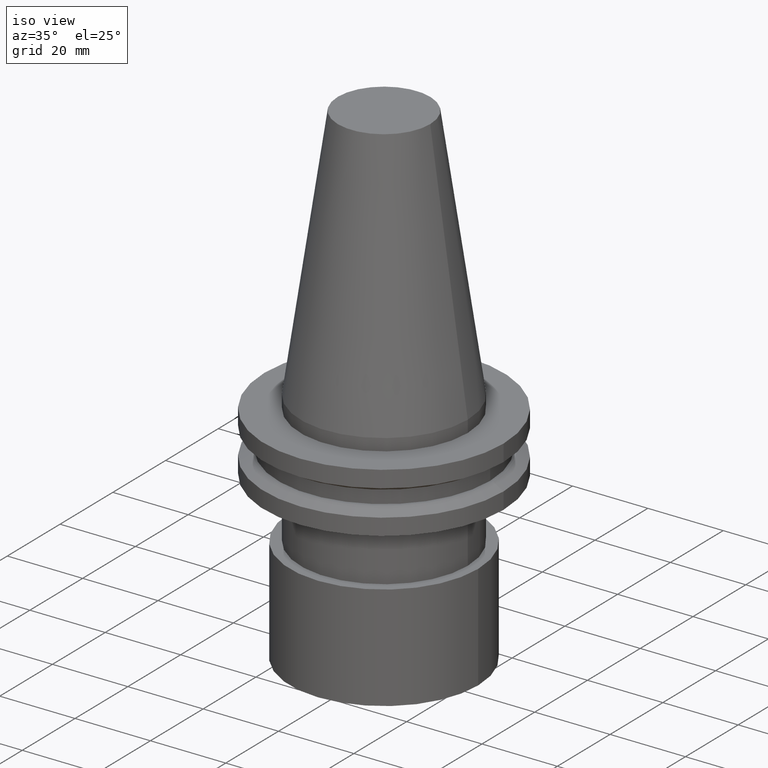
[diagram: clean part render]
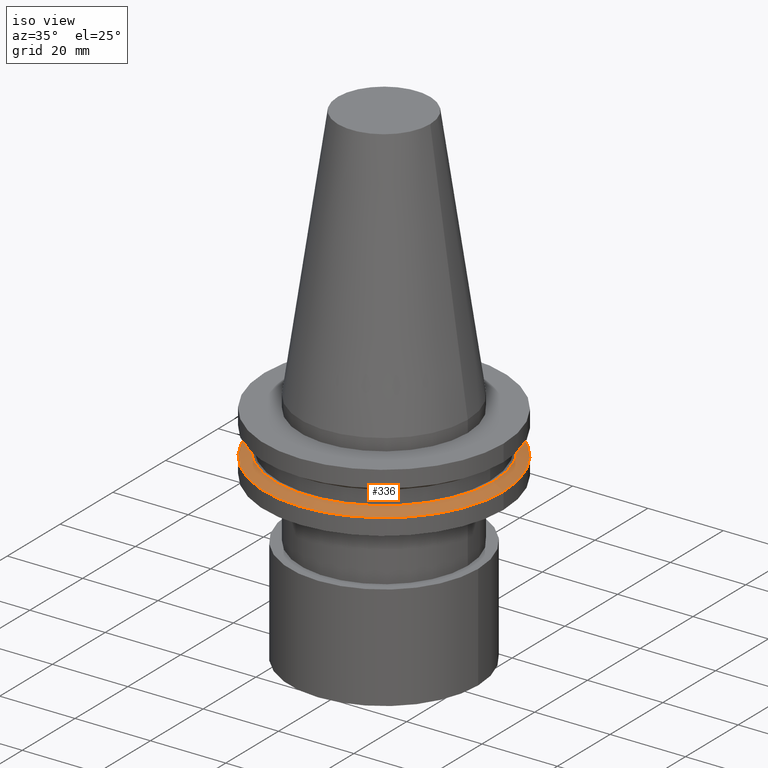
[diagram: same view with one face highlighted and labeled with its STEP entity id]
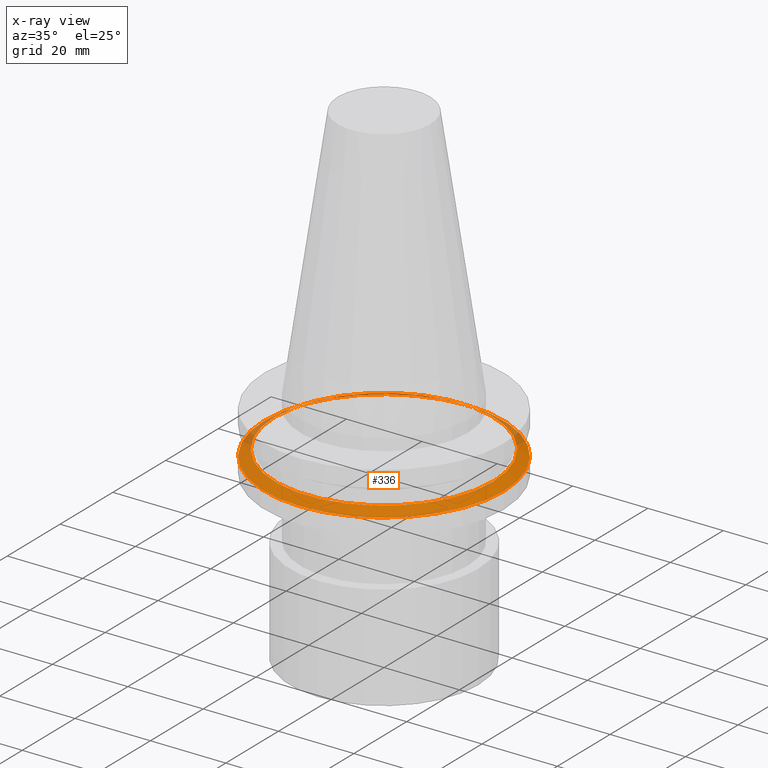
[diagram: x-ray of the same camera — body ghosted, the highlighted face saturated]
A machine part, iso view. The second image highlights one B-rep face of the part: STEP entity #336.
The next image is the same camera in x-ray: the body ghosted, the highlighted face saturated — about 12% of this face is hidden behind the body in this view.
In plain terms, the highlighted conical surface has half-angle 60 deg.
Its self-contained STEP definition (entity closure, byte-faithful):
#8 = DIRECTION ( 'NONE',  ( -1.000000000000000000, 0.000000000000000000, 0.000000000000000000 ) ) ;
#12 = DIRECTION ( 'NONE',  ( 1.000000000000000000, 0.000000000000000000, 0.000000000000000000 ) ) ;
#22 = CARTESIAN_POINT ( 'NONE',  ( 0.000000000000000000, 0.000000000000000000, -13.05499999999999794 ) ) ;
#58 = FACE_BOUND ( 'NONE', #92, .T. ) ;
#67 = CARTESIAN_POINT ( 'NONE',  ( 28.97919780457008088, 0.000000000000000000, -13.05499999999999794 ) ) ;
#77 = EDGE_CURVE ( 'NONE', #144, #144, #87, .T. ) ;
#87 = CIRCLE ( 'NONE', #326, 31.75000000000000000 ) ;
#92 = EDGE_LOOP ( 'NONE', ( #313 ) ) ;
#102 = AXIS2_PLACEMENT_3D ( 'NONE', #341, #278, #8 ) ;
#117 = EDGE_CURVE ( 'NONE', #380, #380, #142, .T. ) ;
#131 = DIRECTION ( 'NONE',  ( -0.000000000000000000, -0.000000000000000000, 1.000000000000000000 ) ) ;
#133 = AXIS2_PLACEMENT_3D ( 'NONE', #22, #131, #386 ) ;
#142 = CIRCLE ( 'NONE', #133, 28.97919780457008088 ) ;
#144 = VERTEX_POINT ( 'NONE', #272 ) ;
#145 = FACE_OUTER_BOUND ( 'NONE', #207, .T. ) ;
#180 = CARTESIAN_POINT ( 'NONE',  ( 0.000000000000000000, 0.000000000000000000, -14.65472339340266572 ) ) ;
#207 = EDGE_LOOP ( 'NONE', ( #275 ) ) ;
#209 = CONICAL_SURFACE ( 'NONE', #102, 31.75000000000000000, 1.047197551196597853 ) ;
#221 = DIRECTION ( 'NONE',  ( -0.000000000000000000, -0.000000000000000000, 1.000000000000000000 ) ) ;
#272 = CARTESIAN_POINT ( 'NONE',  ( 31.75000000000000000, 0.000000000000000000, -14.65472339340266572 ) ) ;
#275 = ORIENTED_EDGE ( 'NONE', *, *, #77, .T. ) ;
#278 = DIRECTION ( 'NONE',  ( 0.000000000000000000, 0.000000000000000000, -1.000000000000000000 ) ) ;
#313 = ORIENTED_EDGE ( 'NONE', *, *, #117, .F. ) ;
#326 = AXIS2_PLACEMENT_3D ( 'NONE', #180, #221, #12 ) ;
#336 = ADVANCED_FACE ( 'NONE', ( #58, #145 ), #209, .T. ) ;
#341 = CARTESIAN_POINT ( 'NONE',  ( 0.000000000000000000, 0.000000000000000000, -14.65472339340266572 ) ) ;
#380 = VERTEX_POINT ( 'NONE', #67 ) ;
#386 = DIRECTION ( 'NONE',  ( 1.000000000000000000, 0.000000000000000000, 0.000000000000000000 ) ) ;